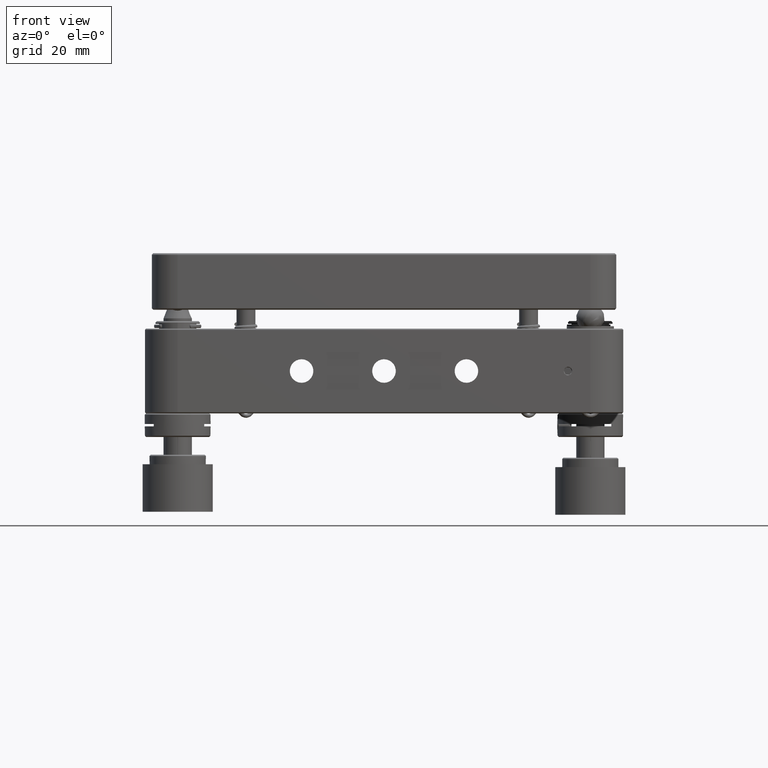
[diagram: clean part render]
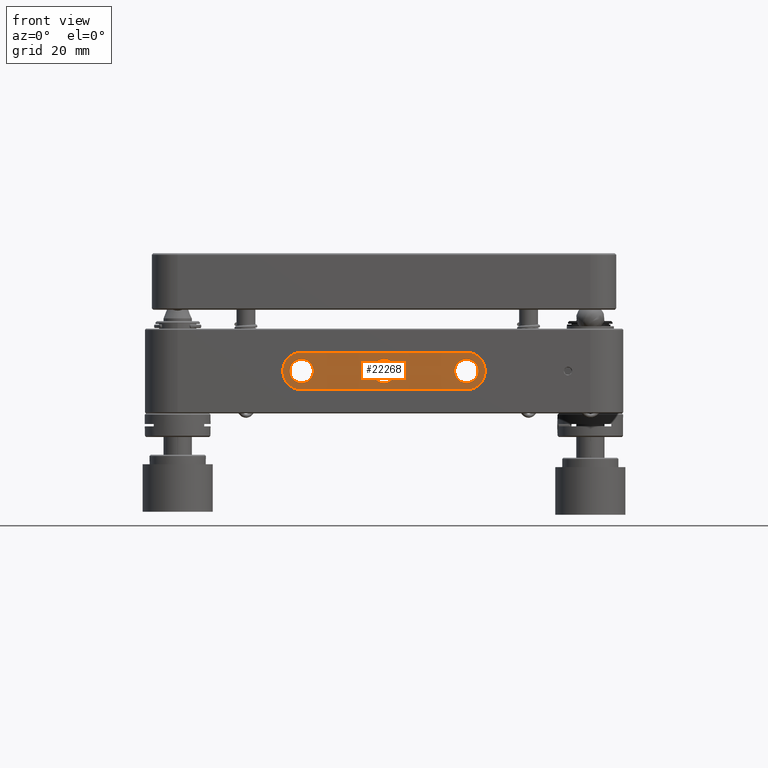
[diagram: same view with one face highlighted and labeled with its STEP entity id]
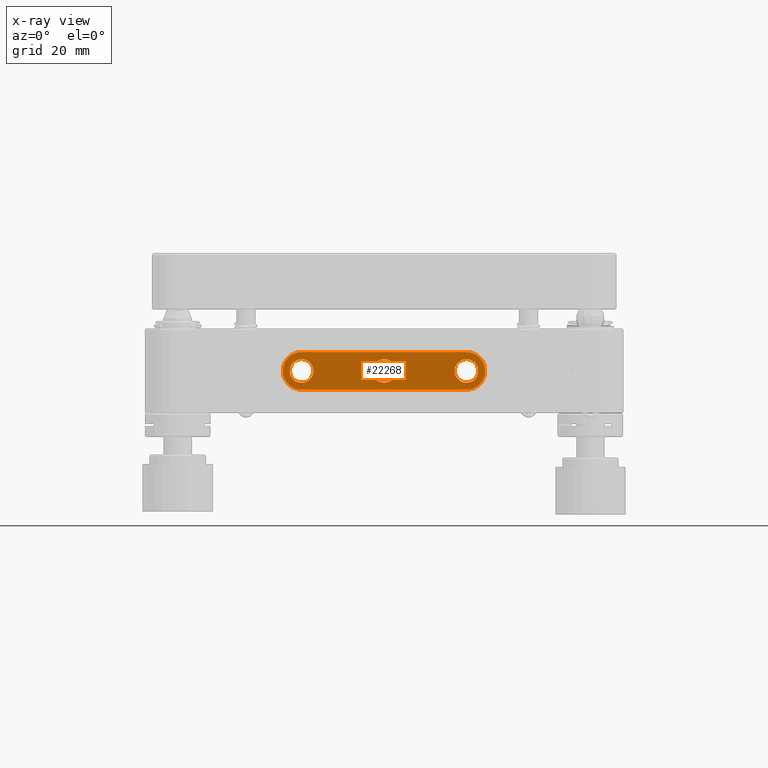
[diagram: x-ray of the same camera — body ghosted, the highlighted face saturated]
A machine part, front view. The second image highlights one B-rep face of the part: STEP entity #22268.
The next image is the same camera in x-ray: the body ghosted, the highlighted face saturated — about 0% of this face is hidden behind the body in this view.
In plain terms, the highlighted planar face has unit normal (0, -1, 0).
Its self-contained STEP definition (entity closure, byte-faithful):
#243 = VERTEX_POINT ( 'NONE', #18283 ) ;
#1473 = DIRECTION ( 'NONE',  ( 1.000000000000000000, -0.000000000000000000, 2.973811673103097665E-16 ) ) ;
#1635 = AXIS2_PLACEMENT_3D ( 'NONE', #5281, #13423, #21572 ) ;
#1915 = DIRECTION ( 'NONE',  ( 0.000000000000000000, 1.000000000000000000, 0.000000000000000000 ) ) ;
#3274 = ORIENTED_EDGE ( 'NONE', *, *, #12907, .T. ) ;
#3434 = LINE ( 'NONE', #19722, #21503 ) ;
#3786 = DIRECTION ( 'NONE',  ( 0.000000000000000000, 0.000000000000000000, -1.000000000000000000 ) ) ;
#4520 = DIRECTION ( 'NONE',  ( 0.000000000000000000, 0.000000000000000000, -1.000000000000000000 ) ) ;
#4805 = FACE_BOUND ( 'NONE', #11247, .T. ) ;
#5157 = AXIS2_PLACEMENT_3D ( 'NONE', #16821, #6677, #12952 ) ;
#5167 = ORIENTED_EDGE ( 'NONE', *, *, #15542, .T. ) ;
#5281 = CARTESIAN_POINT ( 'NONE',  ( 17.50000000000000000, -50.29999999999999716, 6.123233995736761352E-15 ) ) ;
#5291 = EDGE_LOOP ( 'NONE', ( #5167 ) ) ;
#5634 = EDGE_CURVE ( 'NONE', #15333, #10298, #18919, .T. ) ;
#5910 = VERTEX_POINT ( 'NONE', #13665 ) ;
#6009 = ORIENTED_EDGE ( 'NONE', *, *, #12415, .T. ) ;
#6677 = DIRECTION ( 'NONE',  ( 0.000000000000000000, -1.000000000000000000, 0.000000000000000000 ) ) ;
#6992 = CIRCLE ( 'NONE', #9569, 2.499999999999992895 ) ;
#7174 = EDGE_LOOP ( 'NONE', ( #17902 ) ) ;
#7575 = EDGE_LOOP ( 'NONE', ( #16765, #6009, #3274, #19561 ) ) ;
#8008 = CARTESIAN_POINT ( 'NONE',  ( 17.50000000000000000, -50.29999999999999716, -3.999999999999993339 ) ) ;
#8498 = AXIS2_PLACEMENT_3D ( 'NONE', #24087, #1915, #3786 ) ;
#8680 = FACE_BOUND ( 'NONE', #7174, .T. ) ;
#8823 = AXIS2_PLACEMENT_3D ( 'NONE', #22941, #15073, #4520 ) ;
#9569 = AXIS2_PLACEMENT_3D ( 'NONE', #14890, #23025, #24892 ) ;
#9675 = CIRCLE ( 'NONE', #1635, 3.999999999999999112 ) ;
#10298 = VERTEX_POINT ( 'NONE', #16472 ) ;
#10824 = FACE_OUTER_BOUND ( 'NONE', #7575, .T. ) ;
#11247 = EDGE_LOOP ( 'NONE', ( #15904 ) ) ;
#11412 = DIRECTION ( 'NONE',  ( 0.000000000000000000, 0.000000000000000000, -1.000000000000000000 ) ) ;
#11617 = LINE ( 'NONE', #19766, #13108 ) ;
#11742 = EDGE_CURVE ( 'NONE', #5910, #5910, #20348, .T. ) ;
#12415 = EDGE_CURVE ( 'NONE', #10298, #16216, #11617, .T. ) ;
#12493 = CARTESIAN_POINT ( 'NONE',  ( 17.50000000000000355, -50.29999999999999716, 4.000000000000005329 ) ) ;
#12907 = EDGE_CURVE ( 'NONE', #16216, #24776, #9675, .T. ) ;
#12952 = DIRECTION ( 'NONE',  ( 0.000000000000000000, -0.000000000000000000, -1.000000000000000000 ) ) ;
#13108 = VECTOR ( 'NONE', #1473, 1000.000000000000000 ) ;
#13423 = DIRECTION ( 'NONE',  ( -0.000000000000000000, -1.000000000000000000, -0.000000000000000000 ) ) ;
#13665 = CARTESIAN_POINT ( 'NONE',  ( -17.50000000000000000, -50.29999999999999716, -2.499999999999991118 ) ) ;
#14071 = CIRCLE ( 'NONE', #8498, 2.499999999999992450 ) ;
#14236 = AXIS2_PLACEMENT_3D ( 'NONE', #19970, #17411, #11412 ) ;
#14890 = CARTESIAN_POINT ( 'NONE',  ( 0.000000000000000000, -50.29999999999999716, 0.000000000000000000 ) ) ;
#15073 = DIRECTION ( 'NONE',  ( 0.000000000000000000, 1.000000000000000000, 0.000000000000000000 ) ) ;
#15333 = VERTEX_POINT ( 'NONE', #16269 ) ;
#15542 = EDGE_CURVE ( 'NONE', #16437, #16437, #14071, .T. ) ;
#15904 = ORIENTED_EDGE ( 'NONE', *, *, #25648, .T. ) ;
#16216 = VERTEX_POINT ( 'NONE', #8008 ) ;
#16269 = CARTESIAN_POINT ( 'NONE',  ( -17.50000000000000000, -50.29999999999999716, 3.999999999999994671 ) ) ;
#16437 = VERTEX_POINT ( 'NONE', #22457 ) ;
#16472 = CARTESIAN_POINT ( 'NONE',  ( -17.50000000000000000, -50.29999999999999716, -4.000000000000003553 ) ) ;
#16765 = ORIENTED_EDGE ( 'NONE', *, *, #5634, .T. ) ;
#16821 = CARTESIAN_POINT ( 'NONE',  ( 17.50000000000000000, -50.29999999999999716, 6.123233995736761352E-15 ) ) ;
#16948 = PLANE ( 'NONE',  #5157 ) ;
#17411 = DIRECTION ( 'NONE',  ( -0.000000000000000000, -1.000000000000000000, -0.000000000000000000 ) ) ;
#17438 = DIRECTION ( 'NONE',  ( -1.000000000000000000, -0.000000000000000000, -2.973811673103097665E-16 ) ) ;
#17902 = ORIENTED_EDGE ( 'NONE', *, *, #11742, .T. ) ;
#18283 = CARTESIAN_POINT ( 'NONE',  ( 0.000000000000000000, -50.29999999999999716, -2.499999999999992895 ) ) ;
#18919 = CIRCLE ( 'NONE', #14236, 3.999999999999999112 ) ;
#19561 = ORIENTED_EDGE ( 'NONE', *, *, #25161, .T. ) ;
#19722 = CARTESIAN_POINT ( 'NONE',  ( 17.50000000000000000, -50.29999999999999716, 4.000000000000005329 ) ) ;
#19766 = CARTESIAN_POINT ( 'NONE',  ( 17.50000000000000000, -50.29999999999999716, -3.999999999999993339 ) ) ;
#19970 = CARTESIAN_POINT ( 'NONE',  ( -17.50000000000000000, -50.29999999999999716, -4.592425496802578311E-15 ) ) ;
#20348 = CIRCLE ( 'NONE', #8823, 2.499999999999992895 ) ;
#21503 = VECTOR ( 'NONE', #17438, 1000.000000000000000 ) ;
#21572 = DIRECTION ( 'NONE',  ( 0.000000000000000000, 0.000000000000000000, -1.000000000000000000 ) ) ;
#22268 = ADVANCED_FACE ( 'NONE', ( #25091, #8680, #4805, #10824 ), #16948, .T. ) ;
#22457 = CARTESIAN_POINT ( 'NONE',  ( 17.50000000000000000, -50.29999999999999716, -2.499999999999990230 ) ) ;
#22941 = CARTESIAN_POINT ( 'NONE',  ( -17.50000000000000000, -50.29999999999999716, 2.143131898507868248E-15 ) ) ;
#23025 = DIRECTION ( 'NONE',  ( 0.000000000000000000, 1.000000000000000000, 0.000000000000000000 ) ) ;
#24087 = CARTESIAN_POINT ( 'NONE',  ( 17.50000000000000000, -50.29999999999999716, 2.143131898507868248E-15 ) ) ;
#24776 = VERTEX_POINT ( 'NONE', #12493 ) ;
#24892 = DIRECTION ( 'NONE',  ( 0.000000000000000000, 0.000000000000000000, -1.000000000000000000 ) ) ;
#25091 = FACE_BOUND ( 'NONE', #5291, .T. ) ;
#25161 = EDGE_CURVE ( 'NONE', #24776, #15333, #3434, .T. ) ;
#25648 = EDGE_CURVE ( 'NONE', #243, #243, #6992, .T. ) ;